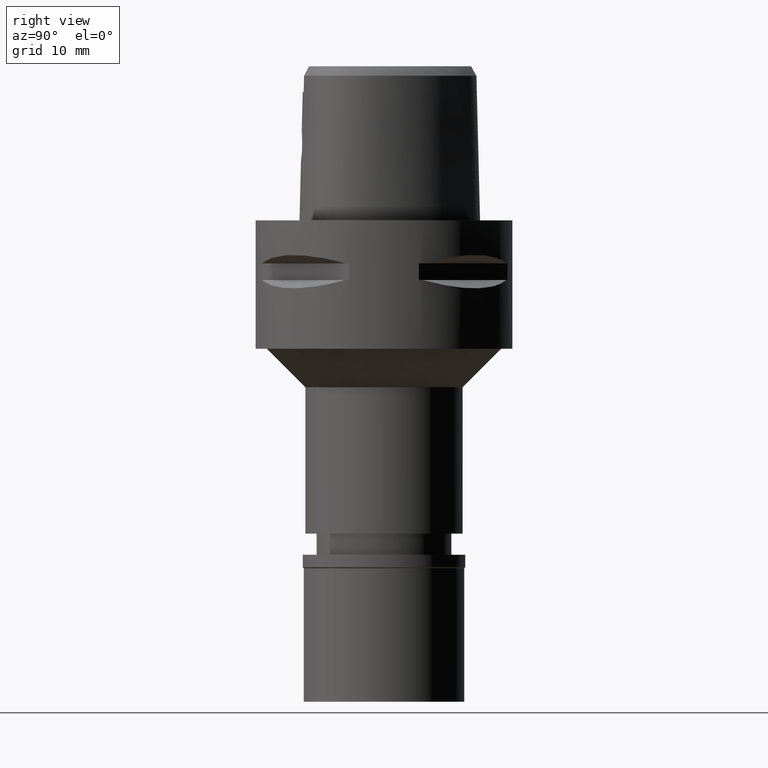
[diagram: clean part render]
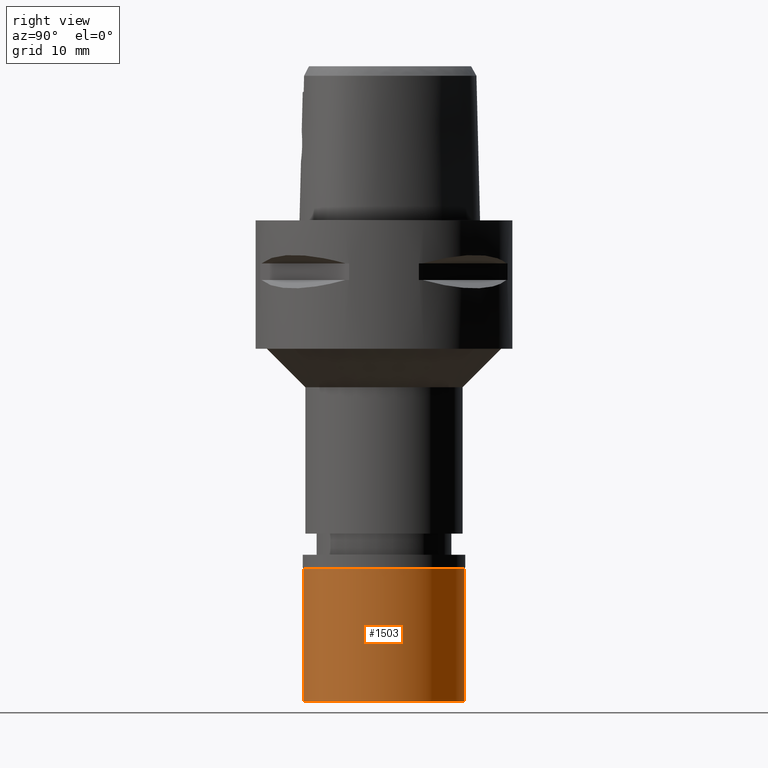
[diagram: same view with one face highlighted and labeled with its STEP entity id]
A machine part, right view. The second image highlights one B-rep face of the part: STEP entity #1503.
In plain terms, the highlighted cylindrical surface (partial cylindrical patch) has radius 12.5 mm, axis along (0, 0, -1).
Its self-contained STEP definition (entity closure, byte-faithful):
#105 = LINE ( 'NONE', #2604, #1356 ) ;
#528 = VERTEX_POINT ( 'NONE', #2396 ) ;
#638 = ORIENTED_EDGE ( 'NONE', *, *, #4571, .T. ) ;
#864 = DIRECTION ( 'NONE',  ( 0.0000000000000000000, 0.0000000000000000000, -1.000000000000000000 ) ) ;
#1193 = CIRCLE ( 'NONE', #2966, 12.50000000000000000 ) ;
#1261 = DIRECTION ( 'NONE',  ( 0.0000000000000000000, 0.0000000000000000000, -1.000000000000000000 ) ) ;
#1278 = DIRECTION ( 'NONE',  ( 0.0000000000000000000, 0.0000000000000000000, -1.000000000000000000 ) ) ;
#1294 = ORIENTED_EDGE ( 'NONE', *, *, #2260, .T. ) ;
#1320 = CARTESIAN_POINT ( 'NONE',  ( 0.0000000000000000000, 0.0000000000000000000, -2.100000000000000089 ) ) ;
#1356 = VECTOR ( 'NONE', #864, 1000.000000000000000 ) ;
#1357 = CARTESIAN_POINT ( 'NONE',  ( 0.0000000000000000000, 0.0000000000000000000, 0.0000000000000000000 ) ) ;
#1465 = CARTESIAN_POINT ( 'NONE',  ( 0.0000000000000000000, -12.50000000000000000, -22.89999999999999858 ) ) ;
#1503 = ADVANCED_FACE ( 'NONE', ( #3156 ), #2769, .T. ) ;
#1504 = CARTESIAN_POINT ( 'NONE',  ( 0.0000000000000000000, -12.50000000000000000, -2.100000000000000089 ) ) ;
#1519 = VECTOR ( 'NONE', #1261, 1000.000000000000000 ) ;
#1729 = DIRECTION ( 'NONE',  ( 0.0000000000000000000, 0.0000000000000000000, 1.000000000000000000 ) ) ;
#1987 = DIRECTION ( 'NONE',  ( 0.0000000000000000000, -1.000000000000000000, 0.0000000000000000000 ) ) ;
#1995 = VERTEX_POINT ( 'NONE', #1465 ) ;
#2260 = EDGE_CURVE ( 'NONE', #1995, #4599, #3656, .T. ) ;
#2396 = CARTESIAN_POINT ( 'NONE',  ( 0.0000000000000000000, 12.50000000000000000, -2.100000000000000089 ) ) ;
#2411 = DIRECTION ( 'NONE',  ( 0.0000000000000000000, 1.000000000000000000, 0.0000000000000000000 ) ) ;
#2488 = AXIS2_PLACEMENT_3D ( 'NONE', #3561, #1729, #1987 ) ;
#2522 = ORIENTED_EDGE ( 'NONE', *, *, #2701, .F. ) ;
#2604 = CARTESIAN_POINT ( 'NONE',  ( 0.0000000000000000000, 12.50000000000000000, -2.100000000000000089 ) ) ;
#2701 = EDGE_CURVE ( 'NONE', #528, #4599, #105, .T. ) ;
#2769 = CYLINDRICAL_SURFACE ( 'NONE', #3820, 12.50000000000000000 ) ;
#2782 = DIRECTION ( 'NONE',  ( 0.0000000000000000000, 0.0000000000000000000, -1.000000000000000000 ) ) ;
#2798 = CARTESIAN_POINT ( 'NONE',  ( 0.0000000000000000000, -12.50000000000000000, -2.100000000000000089 ) ) ;
#2811 = VERTEX_POINT ( 'NONE', #1504 ) ;
#2966 = AXIS2_PLACEMENT_3D ( 'NONE', #1320, #2782, #2411 ) ;
#3116 = CARTESIAN_POINT ( 'NONE',  ( 0.0000000000000000000, 12.50000000000000000, -22.89999999999999858 ) ) ;
#3156 = FACE_OUTER_BOUND ( 'NONE', #3278, .T. ) ;
#3278 = EDGE_LOOP ( 'NONE', ( #3408, #638, #1294, #2522 ) ) ;
#3408 = ORIENTED_EDGE ( 'NONE', *, *, #3409, .T. ) ;
#3409 = EDGE_CURVE ( 'NONE', #528, #2811, #1193, .T. ) ;
#3505 = LINE ( 'NONE', #2798, #1519 ) ;
#3561 = CARTESIAN_POINT ( 'NONE',  ( 0.0000000000000000000, 0.0000000000000000000, -22.89999999999999858 ) ) ;
#3656 = CIRCLE ( 'NONE', #2488, 12.50000000000000000 ) ;
#3820 = AXIS2_PLACEMENT_3D ( 'NONE', #1357, #1278, #4656 ) ;
#4571 = EDGE_CURVE ( 'NONE', #2811, #1995, #3505, .T. ) ;
#4599 = VERTEX_POINT ( 'NONE', #3116 ) ;
#4656 = DIRECTION ( 'NONE',  ( 0.0000000000000000000, -1.000000000000000000, 0.0000000000000000000 ) ) ;